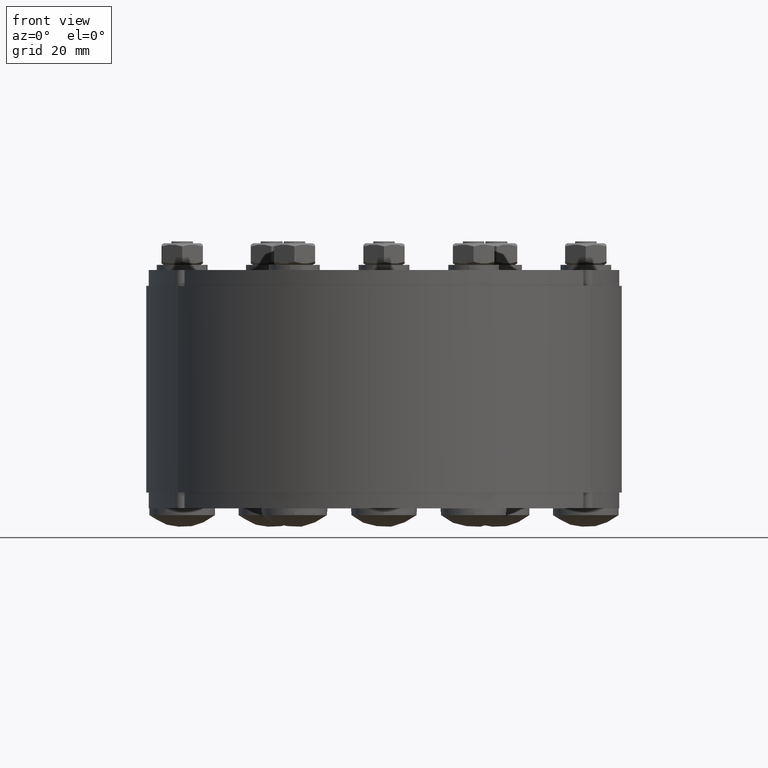
[diagram: clean part render]
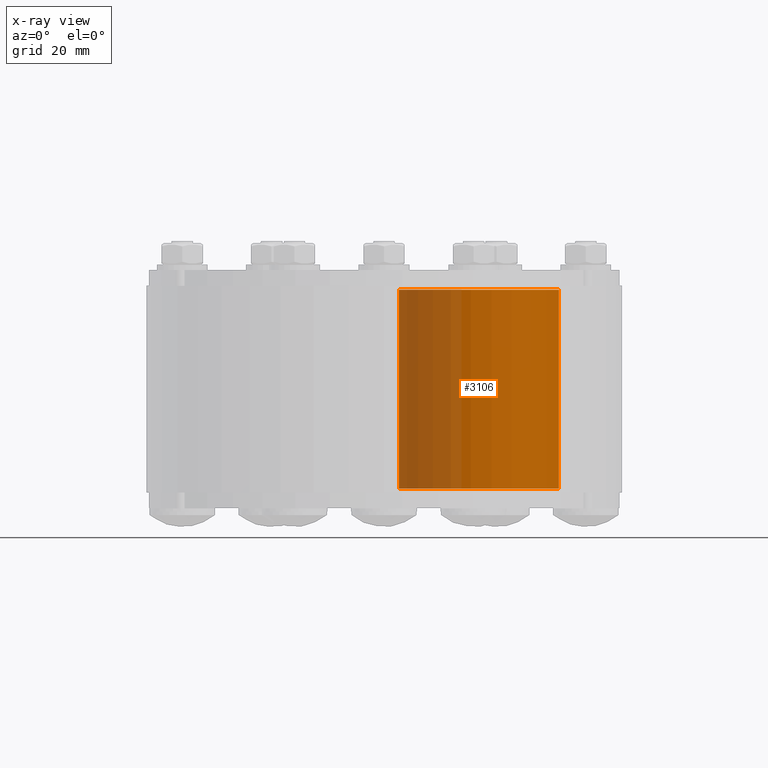
[diagram: x-ray — body ghosted, one internal face saturated and labeled with its STEP entity id]
A machine part, front view, then the same camera in x-ray: the body is ghosted and one INTERNAL B-rep face — a face not visible from any outside direction — is saturated and labeled: STEP entity #3106.
In plain terms, the highlighted cylindrical surface (partial cylindrical patch) has radius 27 mm, axis along (0, 0, 1).
Its self-contained STEP definition (entity closure, byte-faithful):
#3040=CARTESIAN_POINT('',(-31.250000000000004,-2.688658E-015,27.000000000000011));
#3041=VERTEX_POINT('',#3040);
#3048=CARTESIAN_POINT('',(-31.25,5.995204E-015,-27.000000000000011));
#3049=VERTEX_POINT('',#3048);
#3050=CARTESIAN_POINT('',(-31.250000000000004,0.0,0.0));
#3051=DIRECTION('',(1.0,0.0,0.0));
#3052=DIRECTION('',(0.0,0.0,-1.0));
#3053=AXIS2_PLACEMENT_3D('',#3050,#3051,#3052);
#3054=CIRCLE('',#3053,27.000000000000011);
#3055=EDGE_CURVE('',#3049,#3041,#3054,.T.);
#3075=CARTESIAN_POINT('',(0.0,0.0,0.0));
#3076=DIRECTION('',(1.0,0.0,0.0));
#3077=DIRECTION('',(0.0,0.0,-1.0));
#3078=AXIS2_PLACEMENT_3D('',#3075,#3076,#3077);
#3079=CYLINDRICAL_SURFACE('',#3078,27.000000000000011);
#3080=CARTESIAN_POINT('',(31.25,-2.688658E-015,27.000000000000011));
#3081=VERTEX_POINT('',#3080);
#3082=CARTESIAN_POINT('',(-31.25,-2.688658E-015,27.000000000000011));
#3083=DIRECTION('',(1.0,0.0,0.0));
#3084=VECTOR('',#3083,62.5);
#3085=LINE('',#3082,#3084);
#3086=EDGE_CURVE('',#3041,#3081,#3085,.T.);
#3087=ORIENTED_EDGE('',*,*,#3086,.T.);
#3088=CARTESIAN_POINT('',(31.25,5.995204E-015,-27.000000000000011));
#3089=VERTEX_POINT('',#3088);
#3090=CARTESIAN_POINT('',(31.25,0.0,0.0));
#3091=DIRECTION('',(1.0,0.0,0.0));
#3092=DIRECTION('',(0.0,0.0,-1.0));
#3093=AXIS2_PLACEMENT_3D('',#3090,#3091,#3092);
#3094=CIRCLE('',#3093,27.000000000000011);
#3095=EDGE_CURVE('',#3089,#3081,#3094,.T.);
#3096=ORIENTED_EDGE('',*,*,#3095,.F.);
#3097=CARTESIAN_POINT('',(-31.25,5.995204E-015,-27.000000000000011));
#3098=DIRECTION('',(1.0,0.0,0.0));
#3099=VECTOR('',#3098,62.5);
#3100=LINE('',#3097,#3099);
#3101=EDGE_CURVE('',#3049,#3089,#3100,.T.);
#3102=ORIENTED_EDGE('',*,*,#3101,.F.);
#3103=ORIENTED_EDGE('',*,*,#3055,.T.);
#3104=EDGE_LOOP('',(#3087,#3096,#3102,#3103));
#3105=FACE_OUTER_BOUND('',#3104,.T.);
#3106=ADVANCED_FACE('',(#3105),#3079,.T.);